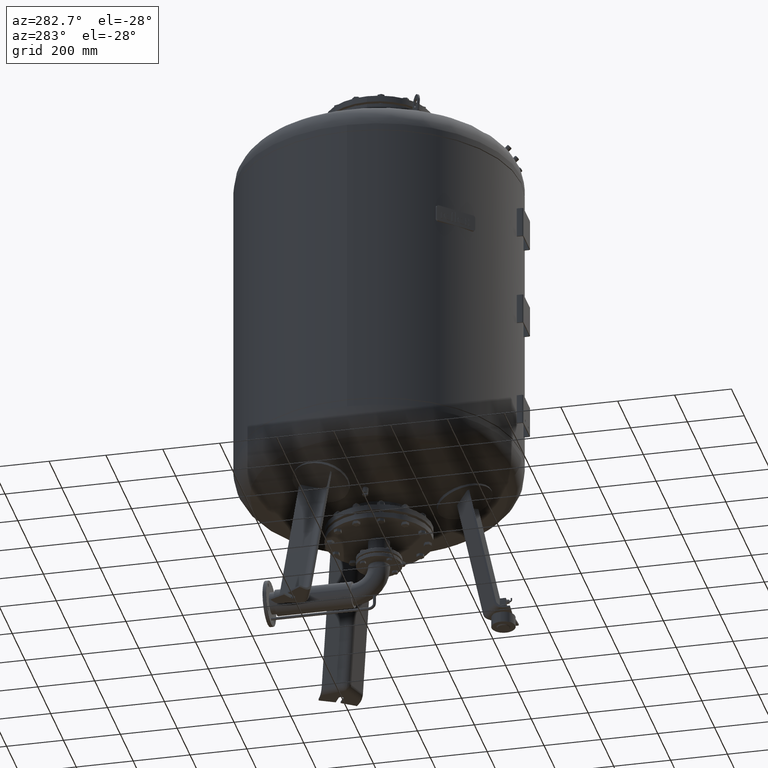
[diagram: clean part render]
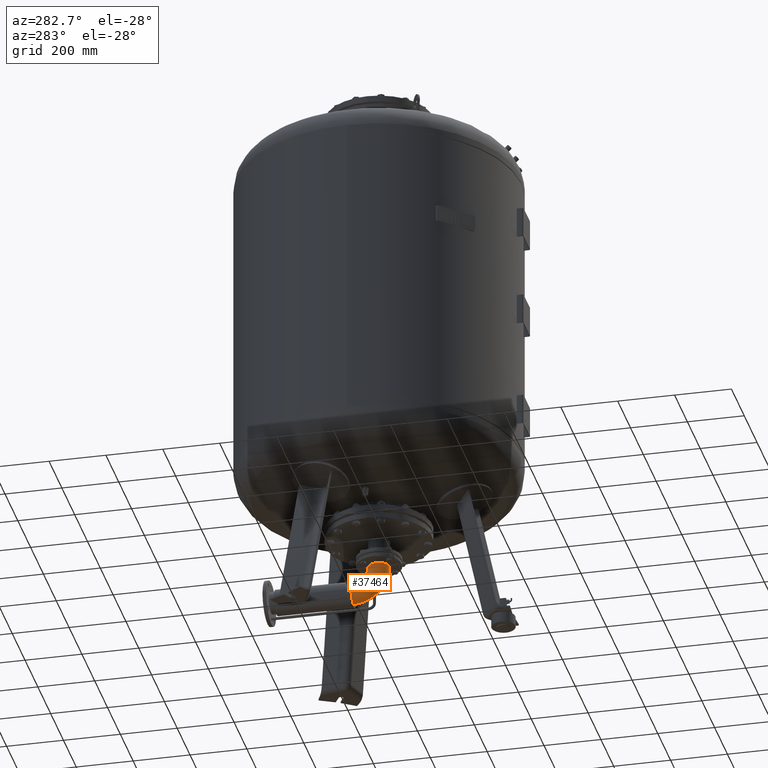
[diagram: same view with one face highlighted and labeled with its STEP entity id]
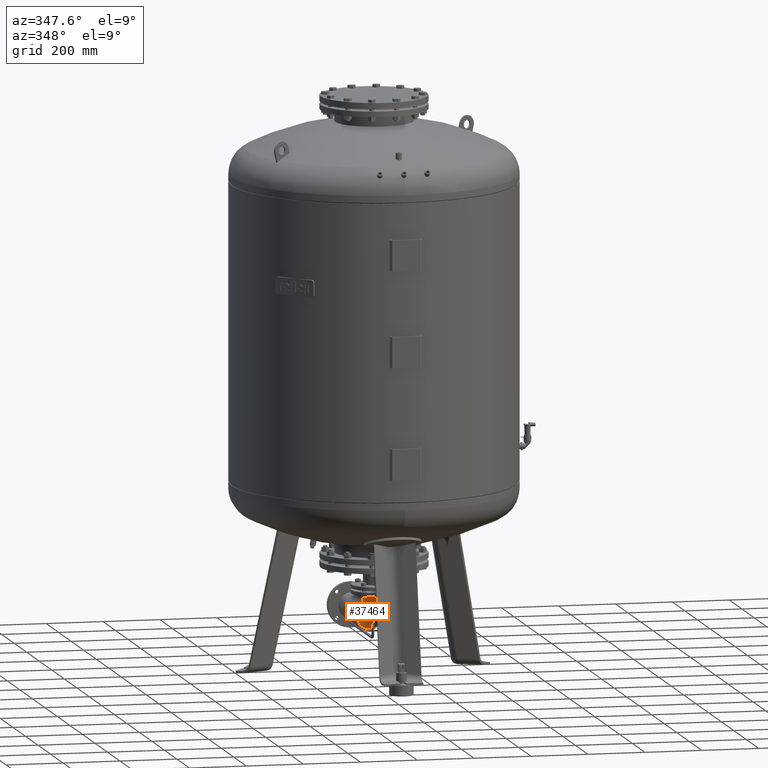
[diagram: same view with one face highlighted and labeled with its STEP entity id]
A machine part, auxiliary view. The second image highlights one B-rep face of the part: STEP entity #37464.
A second angle (auxiliary view) of the same face is appended — the face is thin or edge-on in the first view.
In plain terms, the highlighted toroidal blend (fillet) surface has major radius 95 mm and minor (blend) radius 38.05 mm.
Its self-contained STEP definition (entity closure, byte-faithful):
#36788=CARTESIAN_POINT('',(-1.824185E-014,90.0,152.043982836428200));
#36789=VERTEX_POINT('',#36788);
#36790=CARTESIAN_POINT('',(-1.543080E-014,20.999999999999950,174.427388110798520));
#36791=VERTEX_POINT('',#36790);
#36792=CARTESIAN_POINT('',(-1.959435E-015,95.000000000000028,285.000000000000060));
#36793=DIRECTION('',(-1.0,0.0,0.0));
#36794=DIRECTION('',(0.0,0.0,-1.0));
#36795=AXIS2_PLACEMENT_3D('',#36792,#36793,#36794);
#36796=CIRCLE('',#36795,133.050000000000010);
#36797=EDGE_CURVE('',#36789,#36791,#36796,.T.);
#36799=CARTESIAN_POINT('',(-1.344459E-014,90.0,228.269915388746370));
#36800=VERTEX_POINT('',#36799);
#36838=CARTESIAN_POINT('',(-6.619062E-015,38.049999999999997,285.0));
#36839=VERTEX_POINT('',#36838);
#36840=CARTESIAN_POINT('',(-6.619062E-015,95.000000000000028,285.000000000000060));
#36841=DIRECTION('',(-1.0,0.0,0.0));
#36842=DIRECTION('',(0.0,0.0,-1.0));
#36843=AXIS2_PLACEMENT_3D('',#36840,#36841,#36842);
#36844=CIRCLE('',#36843,56.950000000000045);
#36845=EDGE_CURVE('',#36800,#36839,#36844,.T.);
#36856=CARTESIAN_POINT('',(-1.959435E-015,-38.049999999999997,285.0));
#36857=VERTEX_POINT('',#36856);
#36865=CARTESIAN_POINT('',(-1.449236E-014,10.999999999999954,181.819078798452380));
#36866=VERTEX_POINT('',#36865);
#36867=CARTESIAN_POINT('',(-1.959435E-015,95.000000000000028,285.000000000000060));
#36868=DIRECTION('',(-1.0,0.0,0.0));
#36869=DIRECTION('',(0.0,0.0,-1.0));
#36870=AXIS2_PLACEMENT_3D('',#36867,#36868,#36869);
#36871=CIRCLE('',#36870,133.050000000000010);
#36872=EDGE_CURVE('',#36866,#36857,#36871,.T.);
#37118=CARTESIAN_POINT('',(-5.000000000000023,15.999999999999975,178.352858331413730));
#37119=VERTEX_POINT('',#37118);
#37120=CARTESIAN_POINT('',(-5.000000000000022,15.999999999999979,178.352858331413730));
#37121=CARTESIAN_POINT('',(-5.000000000000023,15.952422919580652,178.388101557761100));
#37122=CARTESIAN_POINT('',(-4.999320927199102,15.904814799612732,178.423305049810380));
#37123=CARTESIAN_POINT('',(-4.992505784103025,15.666303084352187,178.599355059876700));
#37124=CARTESIAN_POINT('',(-4.976087995389703,15.474735004794713,178.739739063668940));
#37125=CARTESIAN_POINT('',(-4.906963408879626,14.997367051705190,179.086990761868320));
#37126=CARTESIAN_POINT('',(-4.840301577388377,14.711899994081154,179.292328086207160));
#37127=CARTESIAN_POINT('',(-4.543668195780326,13.814550578186054,179.930641974015120));
#37128=CARTESIAN_POINT('',(-4.214250239278973,13.220088582364177,180.342153041218010));
#37129=CARTESIAN_POINT('',(-3.350127764949999,12.238646498413072,181.007505582812660));
#37130=CARTESIAN_POINT('',(-2.851786713018264,11.841007658040123,181.270813620789650));
#37131=CARTESIAN_POINT('',(-1.768287469523750,11.289715897708927,181.632117571573620));
#37132=CARTESIAN_POINT('',(-1.219126507174127,11.115924687430500,181.744269455865720));
#37133=CARTESIAN_POINT('',(-0.427733143310494,11.013714378664005,181.810243306369840));
#37134=CARTESIAN_POINT('',(-0.213793530609734,10.999999999999954,181.819078798452380));
#37135=CARTESIAN_POINT('',(-1.449236E-014,10.999999999999954,181.819078798452380));
#37136=B_SPLINE_CURVE_WITH_KNOTS('',3,(#37120,#37121,#37122,#37123,#37124,#37125,#37126,#37127,#37128,#37129,#37130,#37131,#37132,#37133,#37134,#37135),.UNSPECIFIED.,.F.,.U.,(4,2,2,2,2,2,2,4),(-3.525826933944501,-3.508064340591786,-3.436869010832949,-3.330385312996729,-3.097077609176792,-2.893575343950695,-2.719762105755988,-2.655872862781537),.UNSPECIFIED.);
#37137=EDGE_CURVE('',#37119,#36866,#37136,.T.);
#37163=CARTESIAN_POINT('',(-38.049999999999997,-7.105427E-015,285.0));
#37164=VERTEX_POINT('',#37163);
#37187=CARTESIAN_POINT('',(-1.959435E-015,0.0,285.0));
#37188=DIRECTION('',(0.0,0.0,1.0));
#37189=DIRECTION('',(1.0,0.0,0.0));
#37190=AXIS2_PLACEMENT_3D('',#37187,#37188,#37189);
#37191=CIRCLE('',#37190,38.049999999999997);
#37192=EDGE_CURVE('',#36839,#37164,#37191,.T.);
#37203=CARTESIAN_POINT('',(-1.959435E-015,0.0,285.0));
#37204=DIRECTION('',(0.0,0.0,1.0));
#37205=DIRECTION('',(1.0,0.0,0.0));
#37206=AXIS2_PLACEMENT_3D('',#37203,#37204,#37205);
#37207=CIRCLE('',#37206,38.049999999999997);
#37208=EDGE_CURVE('',#37164,#36857,#37207,.T.);
#37257=CARTESIAN_POINT('',(-1.543080E-014,20.999999999999950,174.427388110798520));
#37258=CARTESIAN_POINT('',(-0.477108672476718,20.999999999999950,174.427388110798520));
#37259=CARTESIAN_POINT('',(-0.947023917898404,20.931782506758768,174.483929105556480));
#37260=CARTESIAN_POINT('',(-1.967918326270021,20.634780564585885,174.728707958752640));
#37261=CARTESIAN_POINT('',(-2.484781957802181,20.374142186472326,174.942913571359950));
#37262=CARTESIAN_POINT('',(-3.453406432889632,19.672321657139307,175.512710086816870));
#37263=CARTESIAN_POINT('',(-3.876942923857429,19.213255509861753,175.881743384781540));
#37264=CARTESIAN_POINT('',(-4.483606589191844,18.273706306675709,176.623315592044150));
#37265=CARTESIAN_POINT('',(-4.692013344116483,17.800376627273625,176.991801298147950));
#37266=CARTESIAN_POINT('',(-4.892683301564068,17.062309241256873,177.556158013296650));
#37267=CARTESIAN_POINT('',(-4.941047358611359,16.807984990587677,177.748941348135300));
#37268=CARTESIAN_POINT('',(-4.989766361494969,16.368681903936256,178.078805402766420));
#37269=CARTESIAN_POINT('',(-5.000000000000023,16.184698806224148,178.216040734022780));
#37270=CARTESIAN_POINT('',(-5.000000000000023,15.999999999999975,178.352858331413730));
#37271=B_SPLINE_CURVE_WITH_KNOTS('',3,(#37257,#37258,#37259,#37260,#37261,#37262,#37263,#37264,#37265,#37266,#37267,#37268,#37269,#37270),.UNSPECIFIED.,.F.,.U.,(4,2,2,2,2,2,4),(-0.908632634479546,-0.760951168058306,-0.573360920769338,-0.356148266231173,-0.166039187608378,-0.068956097322009,0.0),.UNSPECIFIED.);
#37272=EDGE_CURVE('',#36791,#37119,#37271,.T.);
#37377=CARTESIAN_POINT('',(-1.344459E-014,90.0,228.269915388746370));
#37378=CARTESIAN_POINT('',(-2.345736137118601,90.0,228.269915388746370));
#37379=CARTESIAN_POINT('',(-4.907466456743373,89.999999999999986,228.037773103555390));
#37380=CARTESIAN_POINT('',(-9.924019669838136,89.999999999999986,227.037192290221950));
#37381=CARTESIAN_POINT('',(-12.378850527893039,90.0,226.268793694064950));
#37382=CARTESIAN_POINT('',(-16.715869424593865,90.0,224.468326628877690));
#37383=CARTESIAN_POINT('',(-18.997193533869673,90.0,223.269616805794500));
#37384=CARTESIAN_POINT('',(-23.255670136898853,90.0,220.417831507650650));
#37385=CARTESIAN_POINT('',(-25.232851956893992,90.0,218.764799824739750));
#37386=CARTESIAN_POINT('',(-28.555442362478939,90.0,215.436242140610200));
#37387=CARTESIAN_POINT('',(-30.206623574915529,90.0,213.453616578105620));
#37388=CARTESIAN_POINT('',(-33.054301462052742,90.0,209.185004409624840));
#37389=CARTESIAN_POINT('',(-34.250807155379768,90.0,206.899023820164360));
#37390=CARTESIAN_POINT('',(-36.049695005065573,90.0,202.550555551167830));
#37391=CARTESIAN_POINT('',(-36.817843877945911,90.000000000000014,200.087333364722330));
#37392=CARTESIAN_POINT('',(-37.818002951121514,90.000000000000014,195.054366651420140));
#37393=CARTESIAN_POINT('',(-38.050000000000011,90.0,192.484619511102120));
#37394=CARTESIAN_POINT('',(-38.050000000000011,90.0,187.779982849876660));
#37395=CARTESIAN_POINT('',(-37.818253153443585,90.0,185.211588055202780));
#37396=CARTESIAN_POINT('',(-36.818539152430503,90.0,180.181400296288590));
#37397=CARTESIAN_POINT('',(-36.050554995260228,90.0,177.719610711231500));
#37398=CARTESIAN_POINT('',(-34.252293720911794,90.0,173.375890119201070));
#37399=CARTESIAN_POINT('',(-33.056728583572308,90.0,171.093595466605960));
#37400=CARTESIAN_POINT('',(-30.211182562348061,90.0,166.832494312170520));
#37401=CARTESIAN_POINT('',(-28.561190453318300,90.0,164.853695306447040));
#37402=CARTESIAN_POINT('',(-25.240181514339145,90.0,161.531181596674860));
#37403=CARTESIAN_POINT('',(-23.263410862745626,90.0,159.881173614722600));
#37404=CARTESIAN_POINT('',(-19.006281158345047,90.0,157.035327005643350));
#37405=CARTESIAN_POINT('',(-16.725917639090529,90.0,155.839495059924390));
#37406=CARTESIAN_POINT('',(-12.388168698341751,90.0,154.042057612549600));
#37407=CARTESIAN_POINT('',(-9.931239945923986,90.0,153.274710223412540));
#37408=CARTESIAN_POINT('',(-4.910795397527872,90.0,152.275671544479510));
#37409=CARTESIAN_POINT('',(-2.347279087798003,90.0,152.043982836428200));
#37410=CARTESIAN_POINT('',(-1.824185E-014,90.0,152.043982836428200));
#37411=B_SPLINE_CURVE_WITH_KNOTS('',3,(#37377,#37378,#37379,#37380,#37381,#37382,#37383,#37384,#37385,#37386,#37387,#37388,#37389,#37390,#37391,#37392,#37393,#37394,#37395,#37396,#37397,#37398,#37399,#37400,#37401,#37402,#37403,#37404,#37405,#37406,#37407,#37408,#37409,#37410),.UNSPECIFIED.,.F.,.U.,(4,2,2,2,2,2,2,2,2,2,2,2,2,2,2,2,4),(11.279043439370058,11.982764280505634,12.686485121641208,13.391532292168581,14.096579462695951,14.802454435090603,15.508329407485256,16.214214202331306,16.920098997177355,17.625605200698942,18.331111404220533,19.035977030154044,19.740842656087551,20.445281041074438,21.149719426061324,21.853903152400719,22.558086878740113),.UNSPECIFIED.);
#37412=EDGE_CURVE('',#36800,#36789,#37411,.T.);
#37449=CARTESIAN_POINT('',(-1.959435E-015,95.000000000000028,285.000000000000060));
#37450=DIRECTION('',(1.0,0.0,-1.224647E-016));
#37451=DIRECTION('',(0.0,0.0,-1.0));
#37452=AXIS2_PLACEMENT_3D('',#37449,#37450,#37451);
#37453=TOROIDAL_SURFACE('',#37452,95.000000000000028,38.049999999999997);
#37454=ORIENTED_EDGE('',*,*,#36797,.T.);
#37455=ORIENTED_EDGE('',*,*,#37272,.T.);
#37456=ORIENTED_EDGE('',*,*,#37137,.T.);
#37457=ORIENTED_EDGE('',*,*,#36872,.T.);
#37458=ORIENTED_EDGE('',*,*,#37208,.F.);
#37459=ORIENTED_EDGE('',*,*,#37192,.F.);
#37460=ORIENTED_EDGE('',*,*,#36845,.F.);
#37461=ORIENTED_EDGE('',*,*,#37412,.T.);
#37462=EDGE_LOOP('',(#37454,#37455,#37456,#37457,#37458,#37459,#37460,#37461));
#37463=FACE_OUTER_BOUND('',#37462,.T.);
#37464=ADVANCED_FACE('',(#37463),#37453,.T.);